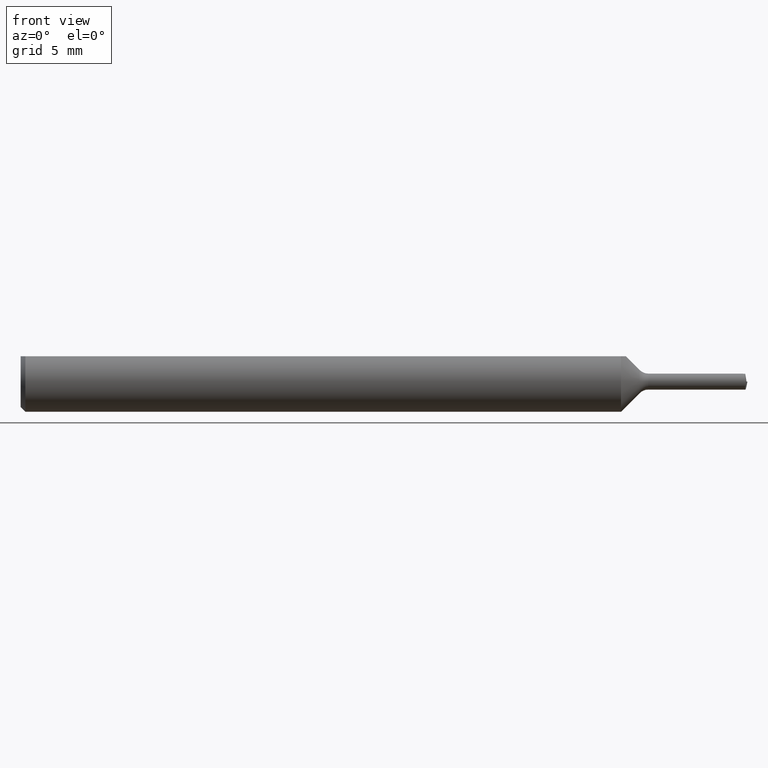
[diagram: clean part render]
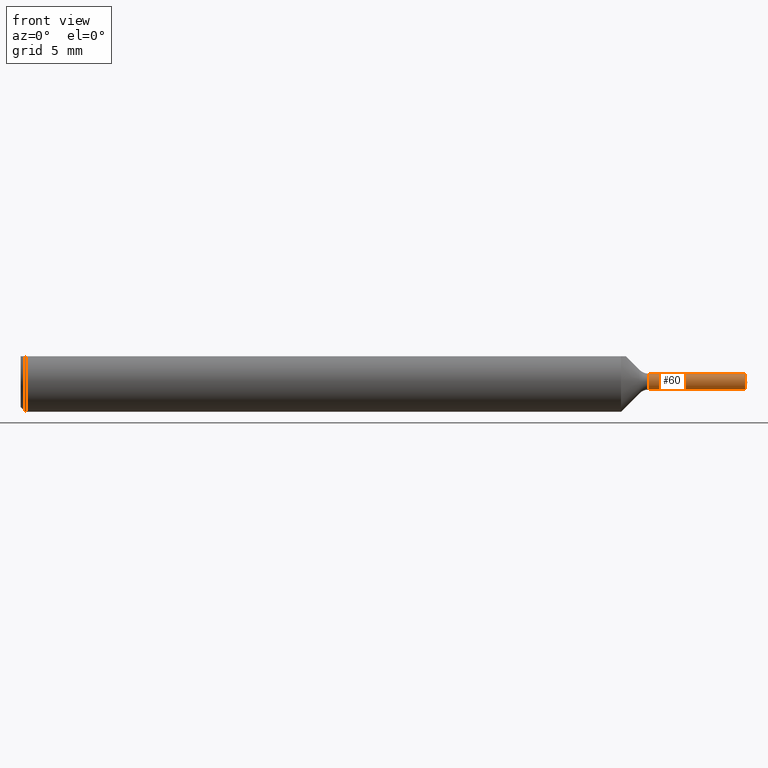
[diagram: same view with one face highlighted and labeled with its STEP entity id]
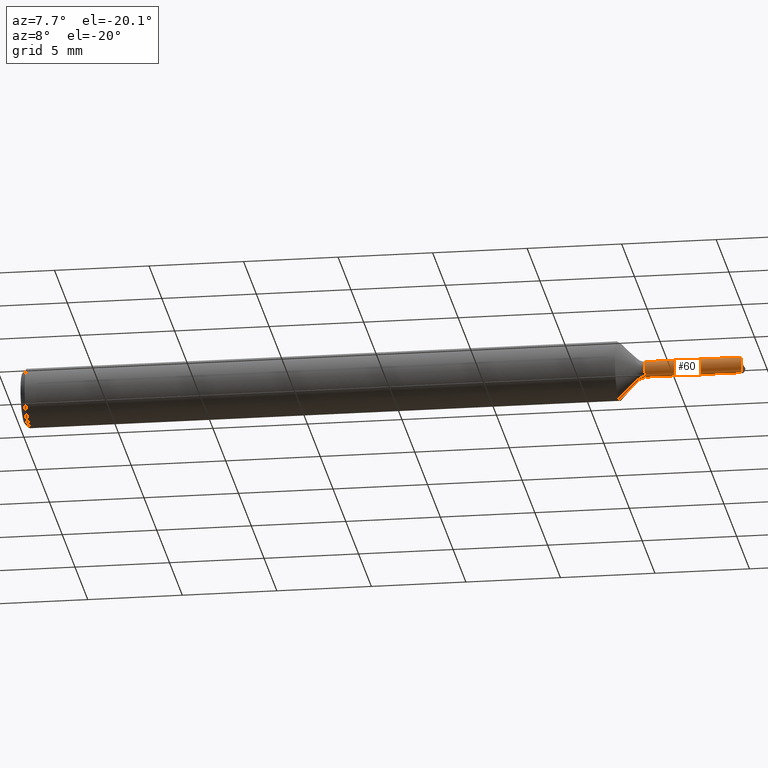
[diagram: same view with one face highlighted and labeled with its STEP entity id]
A machine part, front view. The second image highlights one B-rep face of the part: STEP entity #60.
A second angle (auxiliary view) of the same face is appended — the face is thin or edge-on in the first view.
In plain terms, the highlighted cylindrical surface (edge-blend (fillet) strip) has radius 0.4191 mm, axis along (-1, -0, -0).
Its self-contained STEP definition (entity closure, byte-faithful):
#4 = CARTESIAN_POINT ( 'NONE',  ( 1.495529215183589722, -0.003655992920803003126, 0.01608986375837404698 ) ) ;
#16 = EDGE_CURVE ( 'NONE', #511, #639, #342, .T. ) ;
#17 = DIRECTION ( 'NONE',  ( 0.000000000000000000, 0.000000000000000000, 1.000000000000000000 ) ) ;
#52 = EDGE_CURVE ( 'NONE', #310, #511, #568, .T. ) ;
#55 = VERTEX_POINT ( 'NONE', #399 ) ;
#56 = CARTESIAN_POINT ( 'NONE',  ( 1.496675430786014616, -0.01650000000000000078, 1.657078857424774083E-16 ) ) ;
#60 = ADVANCED_FACE ( 'NONE', ( #567 ), #586, .T. ) ;
#62 = LINE ( 'NONE', #394, #229 ) ;
#67 = DIRECTION ( 'NONE',  ( -1.000000000000000000, -0.000000000000000000, -0.000000000000000000 ) ) ;
#71 = VECTOR ( 'NONE', #67, 39.37007874015748143 ) ;
#112 = CARTESIAN_POINT ( 'NONE',  ( 1.495791212049516705, 2.020667218593134095E-18, -0.01650000000000001119 ) ) ;
#126 = CARTESIAN_POINT ( 'NONE',  ( 1.485163143730661384, 0.000000000000000000, 0.01650000000000001119 ) ) ;
#129 = DIRECTION ( 'NONE',  ( -1.000000000000000000, -0.000000000000000000, -0.000000000000000000 ) ) ;
#130 = CARTESIAN_POINT ( 'NONE',  ( 1.485163143730661384, 0.000000000000000000, 0.01650000000000001119 ) ) ;
#156 = CARTESIAN_POINT ( 'NONE',  ( 1.495529215183589722, -0.003655992920803003126, 0.01608986375837404698 ) ) ;
#166 = CARTESIAN_POINT ( 'NONE',  ( 1.496675430786014616, -0.01650000000000000078, 1.657078857424774083E-16 ) ) ;
#171 = ORIENTED_EDGE ( 'NONE', *, *, #400, .T. ) ;
#177 = EDGE_LOOP ( 'NONE', ( #471, #171, #542, #521, #665, #675 ) ) ;
#179 = DIRECTION ( 'NONE',  ( -1.000000000000000000, -0.000000000000000000, -0.000000000000000000 ) ) ;
#209 = CARTESIAN_POINT ( 'NONE',  ( 1.496675430786014616, -0.01650000000000000078, 1.657078857424774083E-16 ) ) ;
#229 = VECTOR ( 'NONE', #179, 39.37007874015748143 ) ;
#240 = CARTESIAN_POINT ( 'NONE',  ( 1.492016235874890295, -0.002455176029668951643, 0.01636271740829274221 ) ) ;
#241 = CIRCLE ( 'NONE', #336, 0.01650000000000001812 ) ;
#250 = DIRECTION ( 'NONE',  ( -1.000000000000000000, -0.000000000000000000, -0.000000000000000000 ) ) ;
#276 = CARTESIAN_POINT ( 'NONE',  ( 1.495311847845375519, -0.01650000000000008057, -0.009665476220843871938 ) ) ;
#292 = CARTESIAN_POINT ( 'NONE',  ( 1.495529215183589722, -0.003655992920803003126, 0.01608986375837404698 ) ) ;
#310 = VERTEX_POINT ( 'NONE', #4 ) ;
#336 = AXIS2_PLACEMENT_3D ( 'NONE', #616, #129, #17 ) ;
#342 = LINE ( 'NONE', #556, #71 ) ;
#380 = VERTEX_POINT ( 'NONE', #209 ) ;
#394 = CARTESIAN_POINT ( 'NONE',  ( 0.000000000000000000, 2.020667218593134095E-18, -0.01650000000000001119 ) ) ;
#398 = CARTESIAN_POINT ( 'NONE',  ( 1.495791212049516705, 2.020667218593134095E-18, -0.01650000000000001119 ) ) ;
#399 = CARTESIAN_POINT ( 'NONE',  ( 1.295355339059327315, 2.020667218593135251E-18, -0.01650000000000001812 ) ) ;
#400 = EDGE_CURVE ( 'NONE', #430, #380, #640, .T. ) ;
#413 = EDGE_CURVE ( 'NONE', #55, #639, #241, .T. ) ;
#417 = CARTESIAN_POINT ( 'NONE',  ( 1.495542229423954428, -0.01649999999999991404, 0.008032463953595891590 ) ) ;
#430 = VERTEX_POINT ( 'NONE', #398 ) ;
#457 = EDGE_CURVE ( 'NONE', #430, #55, #62, .T. ) ;
#465 = CARTESIAN_POINT ( 'NONE',  ( 0.000000000000000000, 0.000000000000000000, 0.000000000000000000 ) ) ;
#471 = ORIENTED_EDGE ( 'NONE', *, *, #457, .F. ) ;
#511 = VERTEX_POINT ( 'NONE', #126 ) ;
#521 = ORIENTED_EDGE ( 'NONE', *, *, #52, .T. ) ;
#527 = DIRECTION ( 'NONE',  ( 0.000000000000000000, 0.000000000000000000, 1.000000000000000000 ) ) ;
#542 = ORIENTED_EDGE ( 'NONE', *, *, #702, .F. ) ;
#545 = CARTESIAN_POINT ( 'NONE',  ( 1.494945592452613381, -0.009665476220843993369, -0.01650000000000000772 ) ) ;
#556 = CARTESIAN_POINT ( 'NONE',  ( 0.000000000000000000, 0.000000000000000000, 0.01650000000000001119 ) ) ;
#562 = AXIS2_PLACEMENT_3D ( 'NONE', #465, #250, #527 ) ;
#567 = FACE_OUTER_BOUND ( 'NONE', #177, .T. ) ;
#568 =( BOUNDED_CURVE ( )  B_SPLINE_CURVE ( 3, ( #292, #240, #617, #130 ),
 .UNSPECIFIED., .F., .F. ) 
 B_SPLINE_CURVE_WITH_KNOTS ( ( 4, 4 ),
 ( 4.766733112033625375, 4.990162771046303902 ),
 .UNSPECIFIED. ) 
 CURVE ( )  GEOMETRIC_REPRESENTATION_ITEM ( )  RATIONAL_B_SPLINE_CURVE ( ( 1.000000000000000000, 0.9958442570308263520, 0.9958442570308263520, 1.000000000000000000 ) ) 
 REPRESENTATION_ITEM ( '' )  );
#586 = CYLINDRICAL_SURFACE ( 'NONE', #562, 0.01650000000000001119 ) ;
#616 = CARTESIAN_POINT ( 'NONE',  ( 1.295355339059327315, 0.000000000000000000, 0.000000000000000000 ) ) ;
#617 = CARTESIAN_POINT ( 'NONE',  ( 1.488546459223992757, -0.001231426132704265203, 0.01650000000000001465 ) ) ;
#625 = CARTESIAN_POINT ( 'NONE',  ( 1.295355339059327315, 0.000000000000000000, 0.01650000000000001812 ) ) ;
#639 = VERTEX_POINT ( 'NONE', #625 ) ;
#640 =( BOUNDED_CURVE ( )  B_SPLINE_CURVE ( 3, ( #112, #545, #276, #56 ),
 .UNSPECIFIED., .F., .F. ) 
 B_SPLINE_CURVE_WITH_KNOTS ( ( 4, 4 ),
 ( 5.728084607564590591, 7.298880934359494255 ),
 .UNSPECIFIED. ) 
 CURVE ( )  GEOMETRIC_REPRESENTATION_ITEM ( )  RATIONAL_B_SPLINE_CURVE ( ( 1.000000000000000000, 0.8047378541243632721, 0.8047378541243632721, 1.000000000000000000 ) ) 
 REPRESENTATION_ITEM ( '' )  );
#651 = CARTESIAN_POINT ( 'NONE',  ( 1.495095023175414095, -0.01148879599094876358, 0.01431006791892246686 ) ) ;
#665 = ORIENTED_EDGE ( 'NONE', *, *, #16, .T. ) ;
#675 = ORIENTED_EDGE ( 'NONE', *, *, #413, .F. ) ;
#692 =( BOUNDED_CURVE ( )  B_SPLINE_CURVE ( 3, ( #156, #651, #417, #166 ),
 .UNSPECIFIED., .F., .F. ) 
 B_SPLINE_CURVE_WITH_KNOTS ( ( 4, 4 ),
 ( 5.951514266577302870, 7.298880934359511130 ),
 .UNSPECIFIED. ) 
 CURVE ( )  GEOMETRIC_REPRESENTATION_ITEM ( )  RATIONAL_B_SPLINE_CURVE ( ( 1.000000000000000000, 0.8543527035284936844, 0.8543527035284936844, 1.000000000000000000 ) ) 
 REPRESENTATION_ITEM ( '' )  );
#702 = EDGE_CURVE ( 'NONE', #310, #380, #692, .T. ) ;